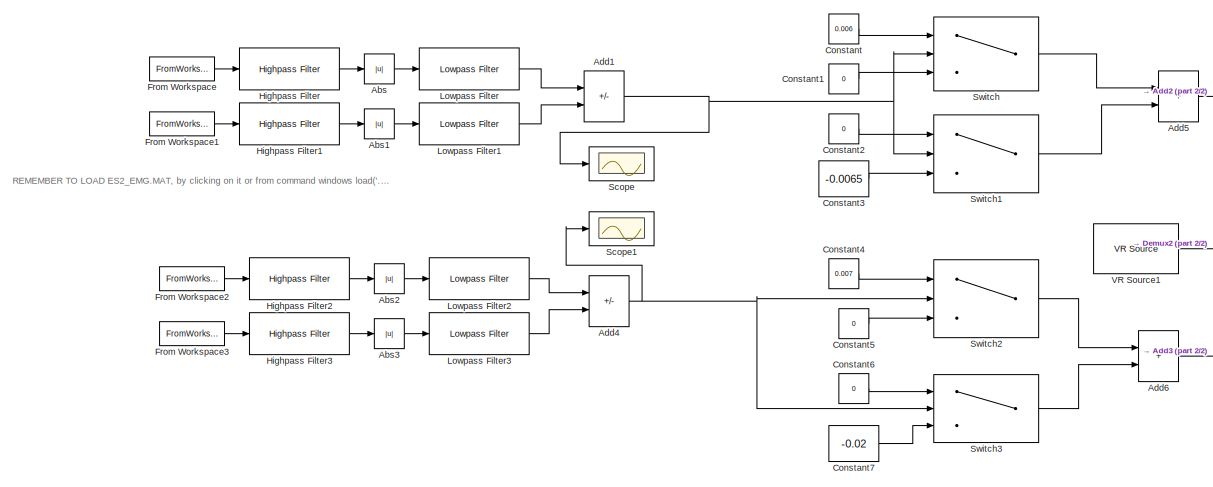
[diagram: root canvas - part 1/2, left side, full height]
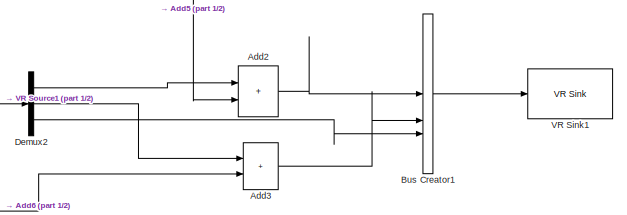
[diagram: root canvas - part 2/2, middle right region]
MODEL slx_21fd582382af
KIND model
CONFIG AbsTol = auto
CONFIG EnableMultiTasking = off
CONFIG FixedStep = auto
CONFIG MaxStep = auto
CONFIG MinStep = auto
CONFIG RelTol = 1e-3
CONFIG SampleTimeConstraint = Unconstrained
CONFIG SolverName = VariableStepAuto
CONFIG StartTime = 0.0
CONFIG StopTime = 30
BLOCK [Abs] Abs
  SaturateOnIntegerOverflow = off
BLOCK [Abs] Abs1
  SaturateOnIntegerOverflow = off
BLOCK [Abs] Abs2
  SaturateOnIntegerOverflow = off
BLOCK [Abs] Abs3
  SaturateOnIntegerOverflow = off
BLOCK [Sum] Add1
  IconShape = rectangular
  Inputs = +-
BLOCK [Sum] Add2
  IconShape = rectangular
BLOCK [Sum] Add3
  IconShape = rectangular
BLOCK [Sum] Add4
  IconShape = rectangular
  Inputs = +-
BLOCK [Sum] Add5
  IconShape = rectangular
BLOCK [Sum] Add6
  IconShape = rectangular
BLOCK [BusCreator] Bus Creator1
  DisplayOption = bar
  InheritFromInputs = on
  Inputs = 3
BLOCK [Constant] Constant
  Value = 0.006
BLOCK [Constant] Constant1
  Value = 0
BLOCK [Constant] Constant2
  Value = 0
BLOCK [Constant] Constant3
  Value = -0.0065
BLOCK [Constant] Constant4
  Value = 0.007
BLOCK [Constant] Constant5
  Value = 0
BLOCK [Constant] Constant6
  Value = 0
BLOCK [Constant] Constant7
  Value = -0.02
BLOCK [Demux] Demux2
  Outputs = 3
BLOCK [FromWorkspace] From Workspace
  SampleTime = 0.001
  VariableName = [ES2_emg.time, ES2_emg.signals(:,1)]
BLOCK [FromWorkspace] From Workspace1
  SampleTime = 0.001
  VariableName = [ES2_emg.time, ES2_emg.signals(:,2)]
BLOCK [FromWorkspace] From Workspace2
  SampleTime = 0.001
  VariableName = [ES2_emg.time, ES2_emg.signals(:,3)]
BLOCK [FromWorkspace] From Workspace3
  SampleTime = 0.001
  VariableName = [ES2_emg.time, ES2_emg.signals(:,4)]
BLOCK [Reference] Highpass Filter  REF=dspfdesign/Highpass Filter
  SourceBlock = dspfdesign/Highpass Filter
  SourceType = dsp.simulink.HighpassFilter
BLOCK [Reference] Highpass Filter1  REF=dspfdesign/Highpass Filter
  SourceBlock = dspfdesign/Highpass Filter
  SourceType = dsp.simulink.HighpassFilter
BLOCK [Reference] Highpass Filter2  REF=dspfdesign/Highpass Filter
  SourceBlock = dspfdesign/Highpass Filter
  SourceType = dsp.simulink.HighpassFilter
BLOCK [Reference] Highpass Filter3  REF=dspfdesign/Highpass Filter
  SourceBlock = dspfdesign/Highpass Filter
  SourceType = dsp.simulink.HighpassFilter
BLOCK [Reference] Lowpass Filter  REF=dspfdesign/Lowpass Filter
  SourceBlock = dspfdesign/Lowpass Filter
  SourceType = dsp.simulink.LowpassFilter
BLOCK [Reference] Lowpass Filter1  REF=dspfdesign/Lowpass Filter
  SourceBlock = dspfdesign/Lowpass Filter
  SourceType = dsp.simulink.LowpassFilter
BLOCK [Reference] Lowpass Filter2  REF=dspfdesign/Lowpass Filter
  SourceBlock = dspfdesign/Lowpass Filter
  SourceType = dsp.simulink.LowpassFilter
BLOCK [Reference] Lowpass Filter3  REF=dspfdesign/Lowpass Filter
  SourceBlock = dspfdesign/Lowpass Filter
  SourceType = dsp.simulink.LowpassFilter
BLOCK [Scope] Scope
  Floating = off
  NumInputPorts = 1
  ScopeSpecificationString = Simulink.scopes.TimeScopeBlockCfg('CurrentConfiguration', extmgr.ConfigurationSet(extmgr.Configuration('Core','General UI',true),extmgr.Configuration('Core','Source UI',true),extmgr.Configuration('Sources','WiredSimulink',true),extmgr.Configuration('Visuals','Time Domain',true,'SerializedDisplays',{struct('MinYLimReal','-0.02269','MaxYLimReal','0.02402','YLabelReal','','MinYLimMag','0.00000','MaxY...<+1413ch>
BLOCK [Scope] Scope1
  Floating = off
  NumInputPorts = 1
  ScopeSpecificationString = Simulink.scopes.TimeScopeBlockCfg('CurrentConfiguration', extmgr.ConfigurationSet(extmgr.Configuration('Core','General UI',true),extmgr.Configuration('Core','Source UI',true),extmgr.Configuration('Sources','WiredSimulink',true,'DataLoggingVariableName','ScopeData1'),extmgr.Configuration('Visuals','Time Domain',true,'SerializedDisplays',{struct('MinYLimReal','-0.00103','MaxYLimReal','0.00043','YLab...<+1481ch>
BLOCK [Switch] Switch
  Criteria = u2 > Threshold
  InputSameDT = off
  SaturateOnIntegerOverflow = off
  Threshold = 00.005
BLOCK [Switch] Switch1
  Criteria = u2 > Threshold
  InputSameDT = off
  SaturateOnIntegerOverflow = off
  Threshold = -00.005
BLOCK [Switch] Switch2
  Criteria = u2 > Threshold
  InputSameDT = off
  SaturateOnIntegerOverflow = off
  Threshold = 00.004
BLOCK [Switch] Switch3
  Criteria = u2 > Threshold
  InputSameDT = off
  SaturateOnIntegerOverflow = off
  Threshold = -00.0008
BLOCK [Reference] VR Sink1  REF=vrlib/VR Sink
  InstantiateOnLoad = on
  SourceBlock = vrlib/VR Sink
  SourceType = Virtual Reality Sink
BLOCK [Reference] VR Source1  REF=vrlib/VR Source
  InstantiateOnLoad = on
  SourceBlock = vrlib/VR Source
  SourceType = Virtual Reality Source
ANNOTATION (root): REMEMBER TO LOAD ES2_EMG.MAT, by clicking on it or from command windows load('...')
LINE Abs1:1 -> Lowpass Filter1:1
LINE Abs2:1 -> Lowpass Filter2:1
LINE Abs3:1 -> Lowpass Filter3:1
LINE Abs:1 -> Lowpass Filter:1
NET Add1:1 -> Scope:1, Switch1:2, Switch:2
LINE Add2:1 -> Bus Creator1:1
LINE Add3:1 -> Bus Creator1:2
NET Add4:1 -> Scope1:1, Switch2:2, Switch3:2
LINE Add5:1 -> Add2:2
LINE Add6:1 -> Add3:2
LINE Bus Creator1:1 -> VR Sink1:1
LINE Constant1:1 -> Switch:3
LINE Constant2:1 -> Switch1:1
LINE Constant3:1 -> Switch1:3
LINE Constant4:1 -> Switch2:1
LINE Constant5:1 -> Switch2:3
LINE Constant6:1 -> Switch3:1
LINE Constant7:1 -> Switch3:3
LINE Constant:1 -> Switch:1
LINE Demux2:1 -> Add2:1
LINE Demux2:2 -> Add3:1
LINE Demux2:3 -> Bus Creator1:3
LINE From Workspace1:1 -> Highpass Filter1:1
LINE From Workspace2:1 -> Highpass Filter2:1
LINE From Workspace3:1 -> Highpass Filter3:1
LINE From Workspace:1 -> Highpass Filter:1
LINE Highpass Filter1:1 -> Abs1:1
LINE Highpass Filter2:1 -> Abs2:1
LINE Highpass Filter3:1 -> Abs3:1
LINE Highpass Filter:1 -> Abs:1
LINE Lowpass Filter1:1 -> Add1:2
LINE Lowpass Filter2:1 -> Add4:1
LINE Lowpass Filter3:1 -> Add4:2
LINE Lowpass Filter:1 -> Add1:1
LINE Switch1:1 -> Add5:2
LINE Switch2:1 -> Add6:1
LINE Switch3:1 -> Add6:2
LINE Switch:1 -> Add5:1
LINE VR Source1:1 -> Demux2:1
note: NET lines group one-source signal fan-out (src -> all destinations, sorted); 1:1 wires keep LINE
